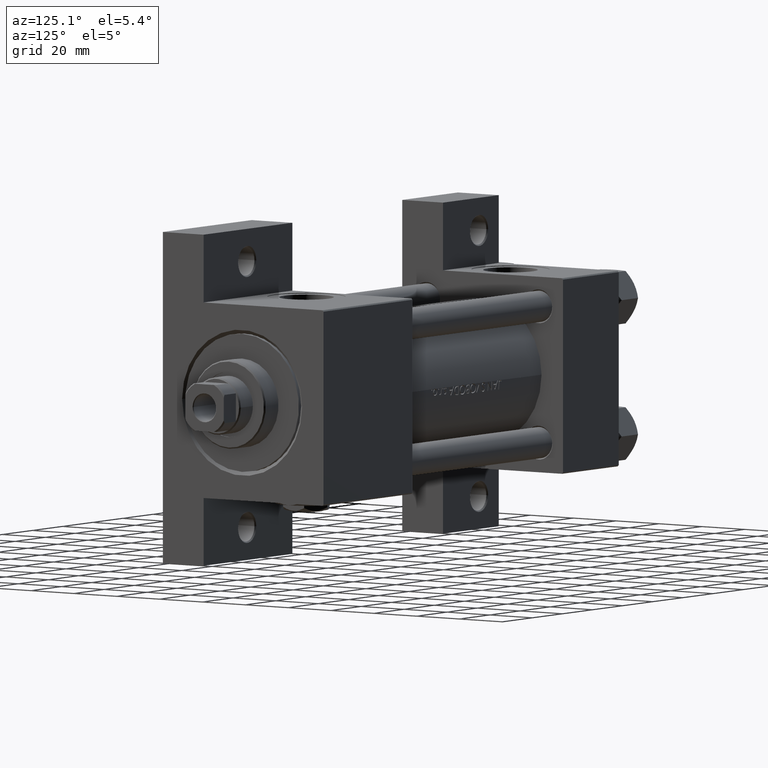
[diagram: clean part render]
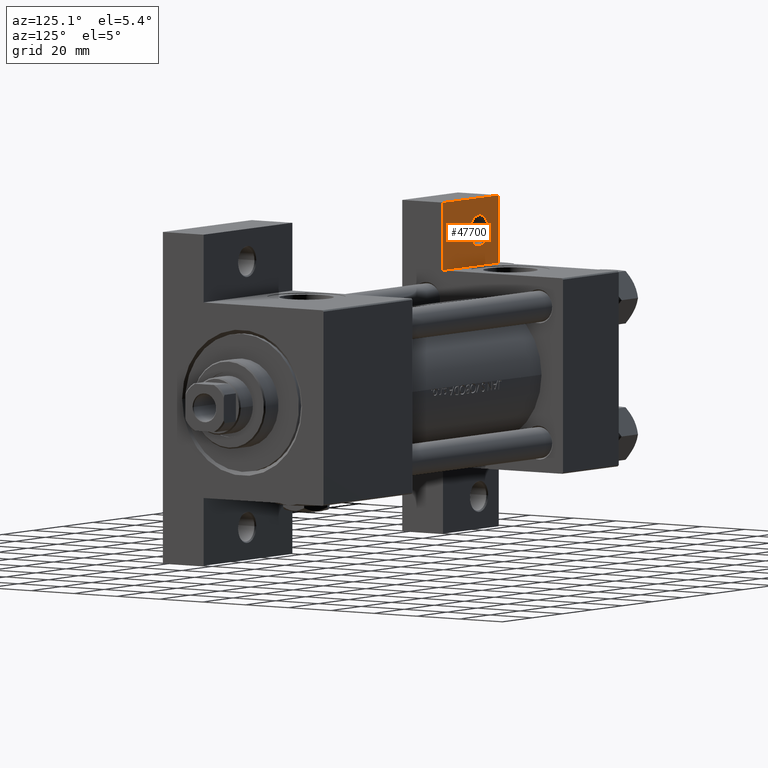
[diagram: same view with one face highlighted and labeled with its STEP entity id]
A machine part, auxiliary view. The second image highlights one B-rep face of the part: STEP entity #47700.
In plain terms, the highlighted planar face has unit normal (0, -1, 0).
Its self-contained STEP definition (entity closure, byte-faithful):
#287 = CIRCLE ( 'NONE', #4274, 5.999500000000022482 ) ;
#1186 = AXIS2_PLACEMENT_3D ( 'NONE', #6114, #21538, #36730 ) ;
#2634 = EDGE_CURVE ( 'NONE', #6995, #38399, #46529, .T. ) ;
#4274 = AXIS2_PLACEMENT_3D ( 'NONE', #39588, #15774, #39828 ) ;
#4598 = ORIENTED_EDGE ( 'NONE', *, *, #47448, .T. ) ;
#6114 = CARTESIAN_POINT ( 'NONE',  ( 12.99999999999999822, -51.00000000000001421, -18.50000000000000000 ) ) ;
#6995 = VERTEX_POINT ( 'NONE', #17379 ) ;
#7980 = EDGE_LOOP ( 'NONE', ( #19826, #16612 ) ) ;
#8250 = DIRECTION ( 'NONE',  ( 0.000000000000000000, 0.000000000000000000, -1.000000000000000000 ) ) ;
#9374 = CARTESIAN_POINT ( 'NONE',  ( 3.977209754999747208E-16, -63.50000000000000000, -18.50000000000000355 ) ) ;
#9391 = ORIENTED_EDGE ( 'NONE', *, *, #37160, .T. ) ;
#12219 = VERTEX_POINT ( 'NONE', #42568 ) ;
#12467 = FACE_OUTER_BOUND ( 'NONE', #14966, .T. ) ;
#12942 = DIRECTION ( 'NONE',  ( -1.000000000000000000, 0.000000000000000000, 0.000000000000000000 ) ) ;
#13104 = CARTESIAN_POINT ( 'NONE',  ( 3.977209754999744250E-16, -63.49999999999998579, -18.50000000000000355 ) ) ;
#14966 = EDGE_LOOP ( 'NONE', ( #33718, #9391, #34250, #4598 ) ) ;
#15403 = VECTOR ( 'NONE', #12942, 1000.000000000000000 ) ;
#15698 = EDGE_CURVE ( 'NONE', #15872, #22891, #47229, .T. ) ;
#15774 = DIRECTION ( 'NONE',  ( 0.000000000000000000, 0.000000000000000000, -1.000000000000000000 ) ) ;
#15872 = VERTEX_POINT ( 'NONE', #42708 ) ;
#15959 = CARTESIAN_POINT ( 'NONE',  ( 18.99950000000001893, -51.00000000000001421, -18.50000000000000000 ) ) ;
#16612 = ORIENTED_EDGE ( 'NONE', *, *, #2634, .T. ) ;
#16675 = CARTESIAN_POINT ( 'NONE',  ( -7.145701223179000102E-16, -37.50000000000001421, -18.49999999999999645 ) ) ;
#16820 = LINE ( 'NONE', #9374, #28289 ) ;
#17379 = CARTESIAN_POINT ( 'NONE',  ( 7.000499999999975742, -51.00000000000001421, -18.50000000000000000 ) ) ;
#19826 = ORIENTED_EDGE ( 'NONE', *, *, #37118, .T. ) ;
#20610 = VERTEX_POINT ( 'NONE', #20909 ) ;
#20909 = CARTESIAN_POINT ( 'NONE',  ( 37.00000000000000000, -63.50000000000000000, -18.50000000000000355 ) ) ;
#21538 = DIRECTION ( 'NONE',  ( 0.000000000000000000, 0.000000000000000000, -1.000000000000000000 ) ) ;
#22891 = VERTEX_POINT ( 'NONE', #33031 ) ;
#23688 = PLANE ( 'NONE',  #41803 ) ;
#27194 = VECTOR ( 'NONE', #31163, 1000.000000000000000 ) ;
#27433 = CARTESIAN_POINT ( 'NONE',  ( 0.000000000000000000, 0.000000000000000000, -18.50000000000000000 ) ) ;
#27918 = LINE ( 'NONE', #43080, #27194 ) ;
#28289 = VECTOR ( 'NONE', #28804, 1000.000000000000000 ) ;
#28469 = EDGE_CURVE ( 'NONE', #20610, #12219, #27918, .T. ) ;
#28510 = VECTOR ( 'NONE', #36010, 1000.000000000000000 ) ;
#28804 = DIRECTION ( 'NONE',  ( 1.000000000000000000, 0.000000000000000000, 0.000000000000000000 ) ) ;
#31163 = DIRECTION ( 'NONE',  ( -0.000000000000000000, 1.000000000000000000, 0.000000000000000000 ) ) ;
#33031 = CARTESIAN_POINT ( 'NONE',  ( 3.977209754999747208E-16, -63.50000000000000000, -18.50000000000000355 ) ) ;
#33718 = ORIENTED_EDGE ( 'NONE', *, *, #28469, .T. ) ;
#34250 = ORIENTED_EDGE ( 'NONE', *, *, #15698, .T. ) ;
#36010 = DIRECTION ( 'NONE',  ( 4.278042683914906889E-17, -1.000000000000000000, 0.000000000000000000 ) ) ;
#36730 = DIRECTION ( 'NONE',  ( -1.000000000000000000, 0.000000000000000000, 0.000000000000000000 ) ) ;
#37118 = EDGE_CURVE ( 'NONE', #38399, #6995, #287, .T. ) ;
#37160 = EDGE_CURVE ( 'NONE', #12219, #15872, #47078, .T. ) ;
#38399 = VERTEX_POINT ( 'NONE', #15959 ) ;
#38610 = DIRECTION ( 'NONE',  ( -1.000000000000000000, 0.000000000000000000, -0.000000000000000000 ) ) ;
#39588 = CARTESIAN_POINT ( 'NONE',  ( 12.99999999999999822, -51.00000000000001421, -18.50000000000000000 ) ) ;
#39828 = DIRECTION ( 'NONE',  ( -1.000000000000000000, 0.000000000000000000, 0.000000000000000000 ) ) ;
#41803 = AXIS2_PLACEMENT_3D ( 'NONE', #27433, #8250, #38610 ) ;
#42360 = FACE_BOUND ( 'NONE', #7980, .T. ) ;
#42568 = CARTESIAN_POINT ( 'NONE',  ( 37.00000000000000000, -37.50000000000000000, -18.50000000000000355 ) ) ;
#42708 = CARTESIAN_POINT ( 'NONE',  ( -7.145701223179004046E-16, -37.50000000000000711, -18.50000000000000355 ) ) ;
#43080 = CARTESIAN_POINT ( 'NONE',  ( 37.00000000000000000, -63.49999999999998579, -18.50000000000000355 ) ) ;
#46529 = CIRCLE ( 'NONE', #1186, 5.999500000000022482 ) ;
#47078 = LINE ( 'NONE', #16675, #15403 ) ;
#47229 = LINE ( 'NONE', #13104, #28510 ) ;
#47448 = EDGE_CURVE ( 'NONE', #22891, #20610, #16820, .T. ) ;
#47700 = ADVANCED_FACE ( 'NONE', ( #42360, #12467 ), #23688, .F. ) ;